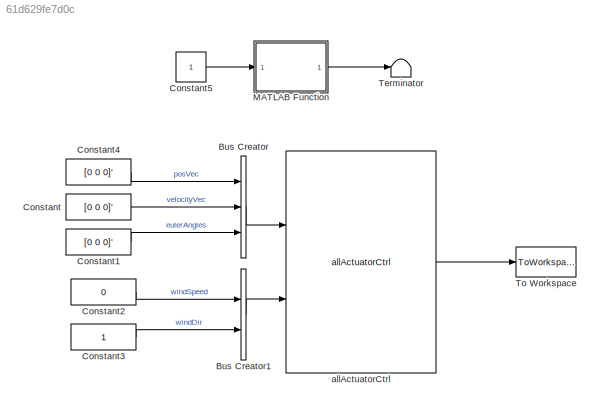
MODEL slx_61d629fe7d0c
KIND model
CONFIG AbsTol = auto
CONFIG EnableMultiTasking = off
CONFIG FixedStep = auto
CONFIG MaxStep = auto
CONFIG MinStep = auto
CONFIG RelTol = 1e-3
CONFIG SampleTimeConstraint = Unconstrained
CONFIG Solver = VariableStepAuto
CONFIG SolverName = VariableStepAuto
CONFIG StartTime = 0.0
CONFIG StopTime = 10.0
BLOCK [BusCreator] Bus Creator
  DisplayOption = bar
  InheritFromInputs = on
  Inputs = posVec,velocityVec,eulerAngles
  OutDataTypeStr = Bus: plantBus
  Ports = [3, 1]
BLOCK [BusCreator] Bus Creator1
  DisplayOption = bar
  InheritFromInputs = off
  Inputs = 2
  NonVirtualBus = on
  OutDataTypeStr = Bus: envBus
  Ports = [2, 1]
BLOCK [Constant] Constant
  Value = [0 0 0]'
BLOCK [Constant] Constant1
  Value = [0 0 0]'
BLOCK [Constant] Constant2
  Value = 0
BLOCK [Constant] Constant3
BLOCK [Constant] Constant4
  Value = [0 0 0]'
BLOCK [Constant] Constant5
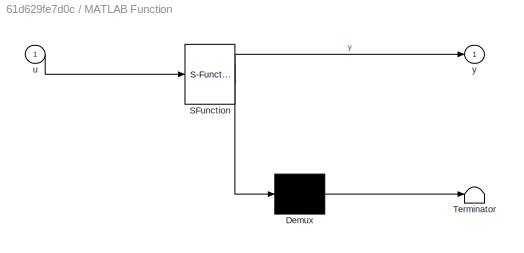
BLOCK [SubSystem] MATLAB Function
  ErrorFcn = Stateflow.Translate.translate
  PermitHierarchicalResolution = ExplicitOnly
  Ports = [1, 1]
  RequestExecContextInheritance = off
  SFBlockType = MATLAB Function
  TreatAsAtomicUnit = on
BLOCK [Demux] MATLAB Function/ Demux 
  Outputs = 1
  Ports = [1, 1]
BLOCK [S-Function] MATLAB Function/ SFunction 
  EnableBusSupport = off
  FunctionName = sf_sfun
  Parameters = ctrl
  PortCounts = [1 2]
  Ports = [1, 2]
  SFcnIsStateOwnerBlock = off
  SFunctionDeploymentMode = off
  Tag = Stateflow S-Function allActuatorCtrl_th 2
BLOCK [Terminator] MATLAB Function/ Terminator 
BLOCK [Inport] MATLAB Function/u
  IconDisplay = Port number
BLOCK [Outport] MATLAB Function/y
  IconDisplay = Port number
BLOCK [Terminator] Terminator
BLOCK [ToWorkspace] To Workspace
  FixptAsFi = on
  MaxDataPoints = inf
  Ports = [1]
  SampleTime = -1
  Save2DSignal = 3-D array (concatenate along third dimension)
  SaveFormat = Timeseries
  VariableName = simout
BLOCK [Reference] allActuatorCtrl  REF=allActuatorCtrl_cl/allActuatorCtrl
  Ports = [2, 1]
  SourceBlock = allActuatorCtrl_cl/allActuatorCtrl
  SourceType = SubSystem
LINE Bus Creator1:1 -> allActuatorCtrl:2
LINE Bus Creator:1 -> allActuatorCtrl:1
LINE Constant1:1 -> Bus Creator:3
LINE Constant2:1 -> Bus Creator1:1
LINE Constant3:1 -> Bus Creator1:2
LINE Constant4:1 -> Bus Creator:1
LINE Constant5:1 -> MATLAB Function:1
LINE Constant:1 -> Bus Creator:2
LINE MATLAB Function:1 -> Terminator:1
LINE allActuatorCtrl:1 -> To Workspace:1
CHART MATLAB Function states=1 transitions=1
  STATE_LABEL 'eML_blk_kernel()'
  STATE_LABEL 'SCRIPT:\nfunction y = fcn(u,ctrl)\n\ny = u;\n'
